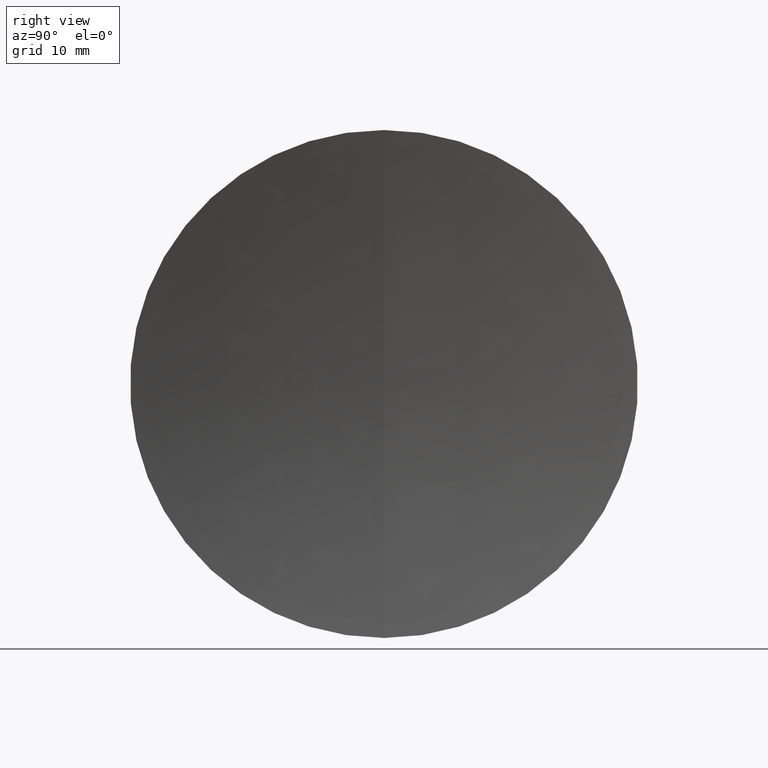
[diagram: clean part render]
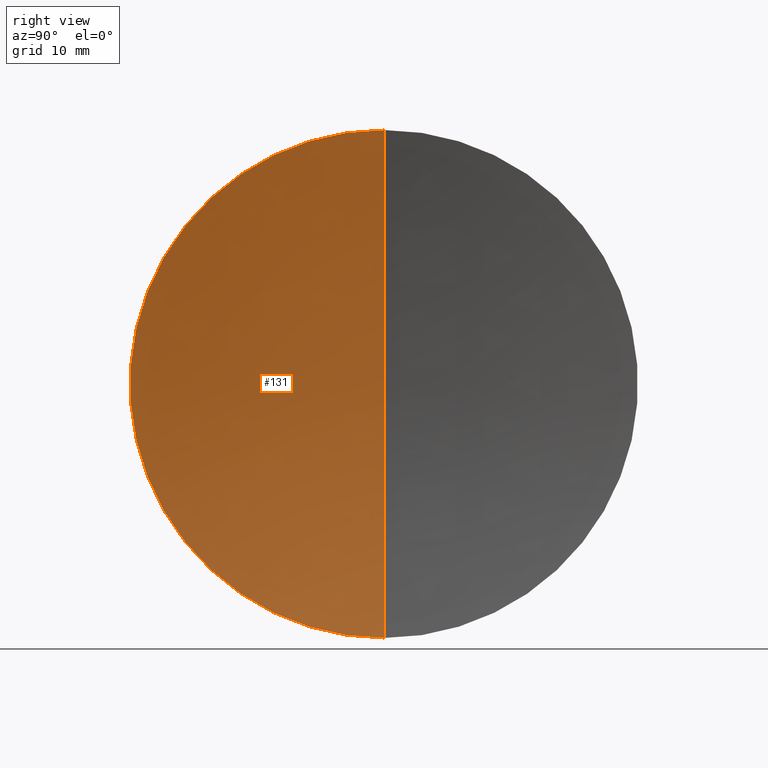
[diagram: same view with one face highlighted and labeled with its STEP entity id]
A machine part, right view. The second image highlights one B-rep face of the part: STEP entity #131.
In plain terms, the highlighted spherical surface has radius 130.62 mm.
Its self-contained STEP definition (entity closure, byte-faithful):
#3 = DIRECTION ( 'NONE',  ( 0.0000000000000000000, 1.224646799147353500E-016, -1.000000000000000000 ) ) ;
#13 = CARTESIAN_POINT ( 'NONE',  ( 320.8737564105606500, 0.0000000000000000000, 0.0000000000000000000 ) ) ;
#18 = EDGE_CURVE ( 'NONE', #113, #258, #252, .T. ) ;
#26 = CARTESIAN_POINT ( 'NONE',  ( 320.8737564105606500, 0.0000000000000000000, 0.0000000000000000000 ) ) ;
#28 = ORIENTED_EDGE ( 'NONE', *, *, #253, .F. ) ;
#29 = AXIS2_PLACEMENT_3D ( 'NONE', #89, #262, #63 ) ;
#45 = FACE_OUTER_BOUND ( 'NONE', #77, .T. ) ;
#47 = AXIS2_PLACEMENT_3D ( 'NONE', #178, #64, #175 ) ;
#56 = CARTESIAN_POINT ( 'NONE',  ( 190.2537564105606400, 0.0000000000000000000, -7.998168245231364900E-015 ) ) ;
#63 = DIRECTION ( 'NONE',  ( 0.0000000000000000000, 0.0000000000000000000, 1.000000000000000000 ) ) ;
#64 = DIRECTION ( 'NONE',  ( -0.0000000000000000000, -1.000000000000000000, -0.0000000000000000000 ) ) ;
#77 = EDGE_LOOP ( 'NONE', ( #28, #330, #314 ) ) ;
#89 = CARTESIAN_POINT ( 'NONE',  ( 192.7471612009789500, 0.0000000000000000000, 0.0000000000000000000 ) ) ;
#98 = VERTEX_POINT ( 'NONE', #264 ) ;
#111 = AXIS2_PLACEMENT_3D ( 'NONE', #13, #184, #338 ) ;
#113 = VERTEX_POINT ( 'NONE', #235 ) ;
#131 = ADVANCED_FACE ( 'NONE', ( #45 ), #342, .F. ) ;
#139 = EDGE_CURVE ( 'NONE', #113, #98, #324, .T. ) ;
#175 = DIRECTION ( 'NONE',  ( 0.0000000000000000000, 0.0000000000000000000, -1.000000000000000000 ) ) ;
#178 = CARTESIAN_POINT ( 'NONE',  ( 320.8737564105606500, 0.0000000000000000000, 0.0000000000000000000 ) ) ;
#184 = DIRECTION ( 'NONE',  ( 0.0000000000000000000, 1.000000000000000000, -0.0000000000000000000 ) ) ;
#199 = DIRECTION ( 'NONE',  ( 0.0000000000000000000, -1.000000000000000000, -1.224646799147353200E-016 ) ) ;
#235 = CARTESIAN_POINT ( 'NONE',  ( 192.7471612009789500, 0.0000000000000000000, -25.39999999999998400 ) ) ;
#252 = CIRCLE ( 'NONE', #111, 130.6200000000000000 ) ;
#253 = EDGE_CURVE ( 'NONE', #98, #258, #275, .T. ) ;
#258 = VERTEX_POINT ( 'NONE', #56 ) ;
#262 = DIRECTION ( 'NONE',  ( -1.000000000000000000, -0.0000000000000000000, -0.0000000000000000000 ) ) ;
#264 = CARTESIAN_POINT ( 'NONE',  ( 192.7471612009789500, -3.110602869834275700E-015, 25.39999999999998400 ) ) ;
#275 = CIRCLE ( 'NONE', #295, 130.6200000000000000 ) ;
#295 = AXIS2_PLACEMENT_3D ( 'NONE', #26, #199, #3 ) ;
#314 = ORIENTED_EDGE ( 'NONE', *, *, #18, .T. ) ;
#324 = CIRCLE ( 'NONE', #29, 25.39999999999999900 ) ;
#330 = ORIENTED_EDGE ( 'NONE', *, *, #139, .F. ) ;
#338 = DIRECTION ( 'NONE',  ( 0.0000000000000000000, 0.0000000000000000000, 1.000000000000000000 ) ) ;
#342 = SPHERICAL_SURFACE ( 'NONE', #47, 130.6200000000000000 ) ;